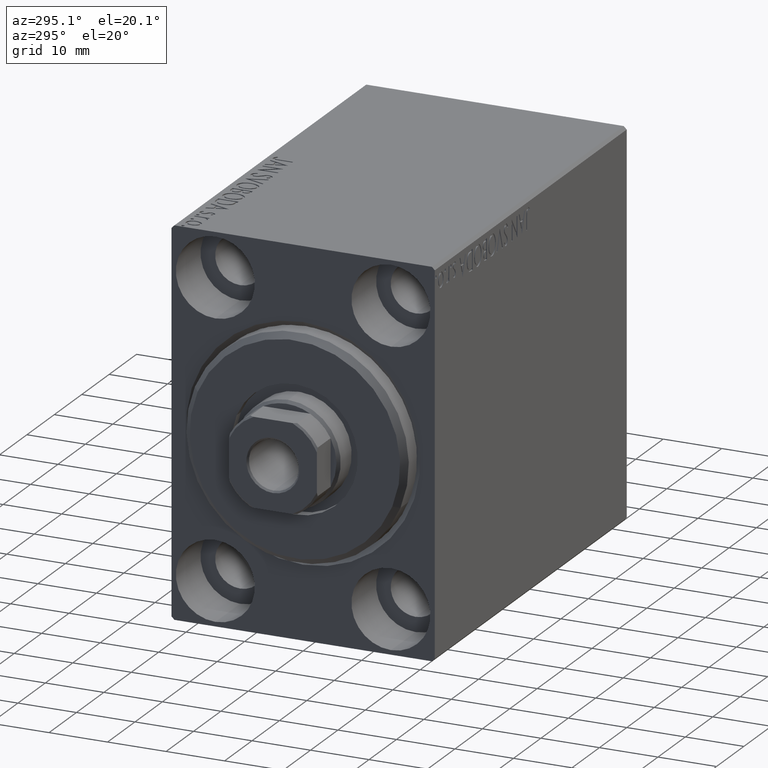
[diagram: clean part render]
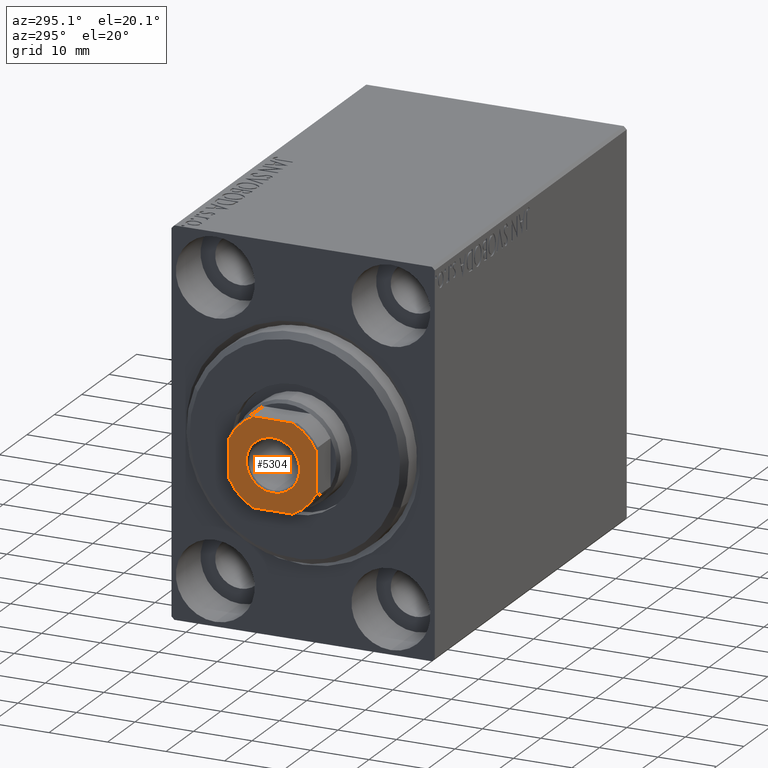
[diagram: same view with one face highlighted and labeled with its STEP entity id]
A machine part, auxiliary view. The second image highlights one B-rep face of the part: STEP entity #5304.
In plain terms, the highlighted planar face has unit normal (-1, 0, 0).
Its self-contained STEP definition (entity closure, byte-faithful):
#44 = AXIS2_PLACEMENT_3D ( 'NONE', #21790, #5197, #15169 ) ;
#797 = DIRECTION ( 'NONE',  ( -0.000000000000000000, 0.000000000000000000, 1.000000000000000000 ) ) ;
#1947 = FACE_OUTER_BOUND ( 'NONE', #33318, .T. ) ;
#3495 = CARTESIAN_POINT ( 'NONE',  ( 0.000000000000000000, 0.000000000000000000, 75.00000000000001421 ) ) ;
#3618 = CIRCLE ( 'NONE', #25561, 4.549999999999991829 ) ;
#3692 = EDGE_CURVE ( 'NONE', #35151, #38439, #7421, .T. ) ;
#3754 = CARTESIAN_POINT ( 'NONE',  ( -7.499999999999999112, -3.315116890850218212, 75.00000000000001421 ) ) ;
#4045 = VERTEX_POINT ( 'NONE', #16215 ) ;
#4921 = EDGE_CURVE ( 'NONE', #5665, #8387, #16274, .T. ) ;
#5197 = DIRECTION ( 'NONE',  ( 0.000000000000000000, -0.000000000000000000, -1.000000000000000000 ) ) ;
#5304 = ADVANCED_FACE ( 'NONE', ( #35841, #1947 ), #12144, .T. ) ;
#5497 = CARTESIAN_POINT ( 'NONE',  ( 0.000000000000000000, 0.000000000000000000, 75.00000000000001421 ) ) ;
#5665 = VERTEX_POINT ( 'NONE', #22486 ) ;
#5671 = CARTESIAN_POINT ( 'NONE',  ( -3.315116890850159148, 7.500000000000000888, 75.00000000000001421 ) ) ;
#6354 = CARTESIAN_POINT ( 'NONE',  ( 7.499999999999998224, 3.315116890850192899, 75.00000000000001421 ) ) ;
#7024 = EDGE_CURVE ( 'NONE', #8387, #16030, #18485, .T. ) ;
#7233 = AXIS2_PLACEMENT_3D ( 'NONE', #31589, #10615, #25603 ) ;
#7301 = VECTOR ( 'NONE', #11817, 1000.000000000000000 ) ;
#7421 = LINE ( 'NONE', #24453, #35343 ) ;
#7489 = ORIENTED_EDGE ( 'NONE', *, *, #15322, .T. ) ;
#7553 = ORIENTED_EDGE ( 'NONE', *, *, #3692, .T. ) ;
#7994 = ORIENTED_EDGE ( 'NONE', *, *, #7024, .T. ) ;
#8200 = DIRECTION ( 'NONE',  ( 1.000000000000000000, 0.000000000000000000, 0.000000000000000000 ) ) ;
#8387 = VERTEX_POINT ( 'NONE', #6354 ) ;
#8483 = EDGE_CURVE ( 'NONE', #38439, #5665, #40433, .T. ) ;
#8610 = AXIS2_PLACEMENT_3D ( 'NONE', #41337, #797, #43778 ) ;
#10615 = DIRECTION ( 'NONE',  ( -0.000000000000000000, 0.000000000000000000, 1.000000000000000000 ) ) ;
#11363 = ORIENTED_EDGE ( 'NONE', *, *, #4921, .T. ) ;
#11817 = DIRECTION ( 'NONE',  ( 1.734723475976807094E-16, -1.000000000000000000, 0.000000000000000000 ) ) ;
#12083 = AXIS2_PLACEMENT_3D ( 'NONE', #5497, #19001, #24750 ) ;
#12128 = EDGE_CURVE ( 'NONE', #37189, #12761, #42608, .T. ) ;
#12144 = PLANE ( 'NONE',  #12083 ) ;
#12573 = EDGE_CURVE ( 'NONE', #16030, #12827, #15531, .T. ) ;
#12761 = VERTEX_POINT ( 'NONE', #3754 ) ;
#12827 = VERTEX_POINT ( 'NONE', #5671 ) ;
#15169 = DIRECTION ( 'NONE',  ( 1.000000000000000000, 0.000000000000000000, 0.000000000000000000 ) ) ;
#15322 = EDGE_CURVE ( 'NONE', #12761, #35151, #42627, .T. ) ;
#15393 = DIRECTION ( 'NONE',  ( 0.000000000000000000, -0.000000000000000000, -1.000000000000000000 ) ) ;
#15531 = LINE ( 'NONE', #42771, #32060 ) ;
#16030 = VERTEX_POINT ( 'NONE', #43002 ) ;
#16215 = CARTESIAN_POINT ( 'NONE',  ( 4.549999999999991829, 0.000000000000000000, 75.00000000000001421 ) ) ;
#16274 = LINE ( 'NONE', #36229, #17685 ) ;
#17685 = VECTOR ( 'NONE', #36438, 1000.000000000000000 ) ;
#18485 = CIRCLE ( 'NONE', #24131, 8.200000000000013500 ) ;
#19001 = DIRECTION ( 'NONE',  ( -0.000000000000000000, 0.000000000000000000, 1.000000000000000000 ) ) ;
#19157 = CIRCLE ( 'NONE', #44, 4.549999999999991829 ) ;
#19386 = CARTESIAN_POINT ( 'NONE',  ( -3.315116890850222653, -7.499999999999998224, 75.00000000000001421 ) ) ;
#20788 = DIRECTION ( 'NONE',  ( -0.000000000000000000, 0.000000000000000000, 1.000000000000000000 ) ) ;
#21222 = CARTESIAN_POINT ( 'NONE',  ( 0.000000000000000000, 0.000000000000000000, 75.00000000000001421 ) ) ;
#21605 = ORIENTED_EDGE ( 'NONE', *, *, #12573, .T. ) ;
#21690 = CARTESIAN_POINT ( 'NONE',  ( 0.000000000000000000, 0.000000000000000000, 75.00000000000001421 ) ) ;
#21790 = CARTESIAN_POINT ( 'NONE',  ( 0.000000000000000000, 0.000000000000000000, 75.00000000000001421 ) ) ;
#21913 = DIRECTION ( 'NONE',  ( -0.000000000000000000, 0.000000000000000000, 1.000000000000000000 ) ) ;
#22486 = CARTESIAN_POINT ( 'NONE',  ( 7.499999999999998224, -3.315116890850184461, 75.00000000000001421 ) ) ;
#22582 = ORIENTED_EDGE ( 'NONE', *, *, #39240, .T. ) ;
#23172 = VERTEX_POINT ( 'NONE', #31211 ) ;
#24131 = AXIS2_PLACEMENT_3D ( 'NONE', #21690, #21913, #8200 ) ;
#24453 = CARTESIAN_POINT ( 'NONE',  ( -7.499999999999999112, -7.499999999999998224, 75.00000000000001421 ) ) ;
#24750 = DIRECTION ( 'NONE',  ( 1.000000000000000000, 0.000000000000000000, 0.000000000000000000 ) ) ;
#25561 = AXIS2_PLACEMENT_3D ( 'NONE', #3495, #15393, #42411 ) ;
#25603 = DIRECTION ( 'NONE',  ( 1.000000000000000000, 0.000000000000000000, 0.000000000000000000 ) ) ;
#26225 = AXIS2_PLACEMENT_3D ( 'NONE', #21222, #20788, #38078 ) ;
#27781 = DIRECTION ( 'NONE',  ( 1.000000000000000000, 0.000000000000000000, 0.000000000000000000 ) ) ;
#28339 = CARTESIAN_POINT ( 'NONE',  ( 3.315116890850187570, -7.499999999999996447, 75.00000000000001421 ) ) ;
#28643 = CARTESIAN_POINT ( 'NONE',  ( -7.500000000000001776, 7.500000000000001776, 75.00000000000001421 ) ) ;
#31147 = ORIENTED_EDGE ( 'NONE', *, *, #42277, .T. ) ;
#31211 = CARTESIAN_POINT ( 'NONE',  ( -4.549999999999991829, 5.572142936120446480E-16, 75.00000000000001421 ) ) ;
#31589 = CARTESIAN_POINT ( 'NONE',  ( 0.000000000000000000, 0.000000000000000000, 75.00000000000001421 ) ) ;
#32060 = VECTOR ( 'NONE', #42328, 1000.000000000000000 ) ;
#33318 = EDGE_LOOP ( 'NONE', ( #11363, #7994, #21605, #31147, #37702, #7489, #7553, #40785 ) ) ;
#35151 = VERTEX_POINT ( 'NONE', #19386 ) ;
#35343 = VECTOR ( 'NONE', #27781, 1000.000000000000000 ) ;
#35531 = CIRCLE ( 'NONE', #26225, 8.200000000000002842 ) ;
#35841 = FACE_BOUND ( 'NONE', #37138, .T. ) ;
#36211 = CARTESIAN_POINT ( 'NONE',  ( -7.500000000000000888, 3.315116890850160036, 75.00000000000001421 ) ) ;
#36229 = CARTESIAN_POINT ( 'NONE',  ( 7.499999999999997335, 7.500000000000000888, 75.00000000000001421 ) ) ;
#36438 = DIRECTION ( 'NONE',  ( -1.156482317317871478E-16, 1.000000000000000000, -0.000000000000000000 ) ) ;
#37138 = EDGE_LOOP ( 'NONE', ( #41292, #22582 ) ) ;
#37189 = VERTEX_POINT ( 'NONE', #36211 ) ;
#37702 = ORIENTED_EDGE ( 'NONE', *, *, #12128, .T. ) ;
#38078 = DIRECTION ( 'NONE',  ( 1.000000000000000000, 0.000000000000000000, 0.000000000000000000 ) ) ;
#38439 = VERTEX_POINT ( 'NONE', #28339 ) ;
#39240 = EDGE_CURVE ( 'NONE', #23172, #4045, #19157, .T. ) ;
#39944 = EDGE_CURVE ( 'NONE', #4045, #23172, #3618, .T. ) ;
#40433 = CIRCLE ( 'NONE', #8610, 8.200000000000011724 ) ;
#40785 = ORIENTED_EDGE ( 'NONE', *, *, #8483, .T. ) ;
#41292 = ORIENTED_EDGE ( 'NONE', *, *, #39944, .T. ) ;
#41337 = CARTESIAN_POINT ( 'NONE',  ( 0.000000000000000000, 0.000000000000000000, 75.00000000000001421 ) ) ;
#42277 = EDGE_CURVE ( 'NONE', #12827, #37189, #35531, .T. ) ;
#42328 = DIRECTION ( 'NONE',  ( -1.000000000000000000, 5.782411586589357392E-17, -0.000000000000000000 ) ) ;
#42411 = DIRECTION ( 'NONE',  ( 1.000000000000000000, 0.000000000000000000, 0.000000000000000000 ) ) ;
#42608 = LINE ( 'NONE', #28643, #7301 ) ;
#42627 = CIRCLE ( 'NONE', #7233, 8.200000000000024158 ) ;
#42771 = CARTESIAN_POINT ( 'NONE',  ( -7.500000000000001776, 7.500000000000001776, 75.00000000000001421 ) ) ;
#43002 = CARTESIAN_POINT ( 'NONE',  ( 3.315116890850187126, 7.500000000000000888, 75.00000000000001421 ) ) ;
#43778 = DIRECTION ( 'NONE',  ( 1.000000000000000000, 0.000000000000000000, 0.000000000000000000 ) ) ;